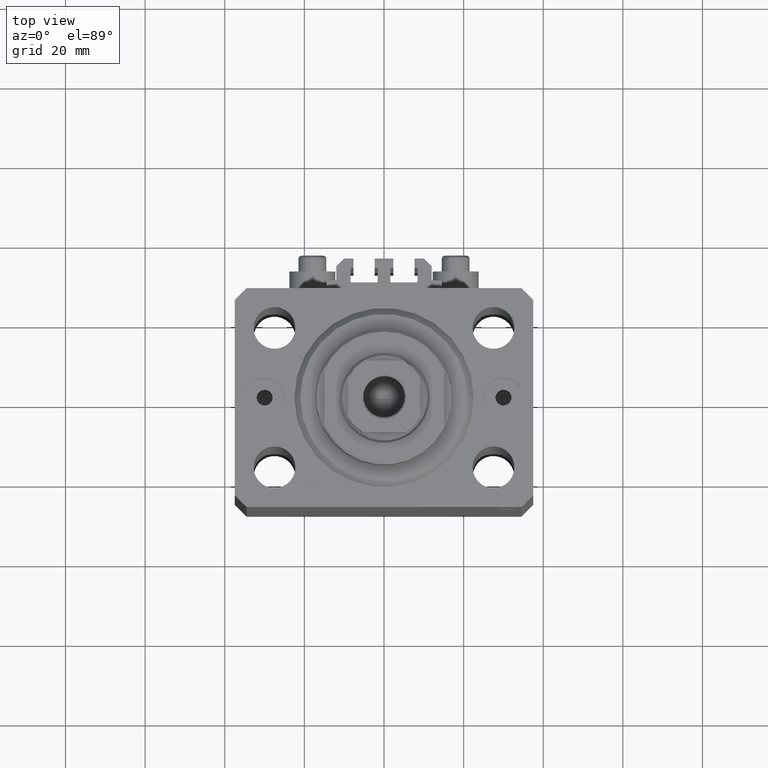
[diagram: clean part render]
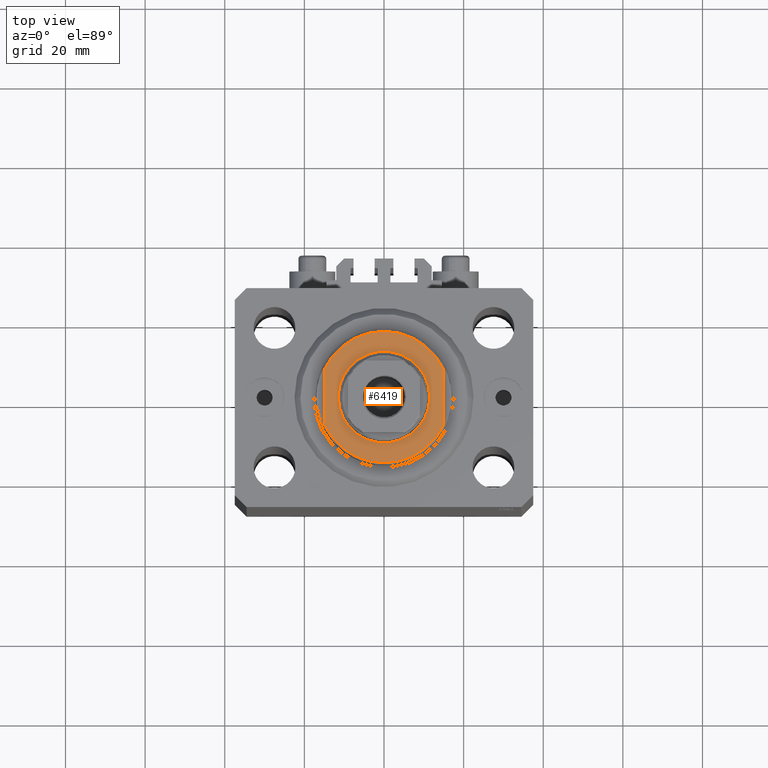
[diagram: same view with one face highlighted and labeled with its STEP entity id]
A machine part, top view. The second image highlights one B-rep face of the part: STEP entity #6419.
In plain terms, the highlighted planar face has unit normal (0, 0, 1).
Its self-contained STEP definition (entity closure, byte-faithful):
#115 = DIRECTION ( 'NONE',  ( -0.000000000000000000, -0.000000000000000000, 1.000000000000000000 ) ) ;
#713 = VERTEX_POINT ( 'NONE', #10875 ) ;
#829 = VERTEX_POINT ( 'NONE', #33327 ) ;
#1078 = CARTESIAN_POINT ( 'NONE',  ( -15.00000000000000000, -42.42640687119285303, -8.000000000000000000 ) ) ;
#2230 = PLANE ( 'NONE',  #18091 ) ;
#2938 = CARTESIAN_POINT ( 'NONE',  ( 0.000000000000000000, 0.000000000000000000, -8.000000000000000000 ) ) ;
#4175 = CARTESIAN_POINT ( 'NONE',  ( 0.000000000000000000, 0.000000000000000000, -8.000000000000000000 ) ) ;
#4891 = DIRECTION ( 'NONE',  ( -0.000000000000000000, -1.000000000000000000, -0.000000000000000000 ) ) ;
#5733 = CARTESIAN_POINT ( 'NONE',  ( 11.50000000000000355, 1.408343819019456570E-15, -8.000000000000000000 ) ) ;
#6419 = ADVANCED_FACE ( 'NONE', ( #10094, #46625 ), #2230, .T. ) ;
#7322 = CARTESIAN_POINT ( 'NONE',  ( 14.99999999999999645, -6.873863542433765517, -8.000000000000000000 ) ) ;
#7776 = CIRCLE ( 'NONE', #10788, 11.50000000000000355 ) ;
#8697 = ORIENTED_EDGE ( 'NONE', *, *, #33475, .T. ) ;
#10094 = FACE_BOUND ( 'NONE', #11980, .T. ) ;
#10331 = DIRECTION ( 'NONE',  ( 0.000000000000000000, 0.000000000000000000, -1.000000000000000000 ) ) ;
#10788 = AXIS2_PLACEMENT_3D ( 'NONE', #16738, #19614, #35124 ) ;
#10845 = DIRECTION ( 'NONE',  ( -1.000000000000000000, 0.000000000000000000, 0.000000000000000000 ) ) ;
#10875 = CARTESIAN_POINT ( 'NONE',  ( -11.50000000000000355, 0.000000000000000000, -8.000000000000000000 ) ) ;
#11101 = ORIENTED_EDGE ( 'NONE', *, *, #40061, .T. ) ;
#11980 = EDGE_LOOP ( 'NONE', ( #8697, #11101 ) ) ;
#11992 = AXIS2_PLACEMENT_3D ( 'NONE', #4175, #18723, #42558 ) ;
#12412 = LINE ( 'NONE', #44883, #19982 ) ;
#13137 = EDGE_CURVE ( 'NONE', #37943, #829, #41417, .T. ) ;
#15077 = VECTOR ( 'NONE', #4891, 1000.000000000000000 ) ;
#16689 = DIRECTION ( 'NONE',  ( 0.000000000000000000, -1.000000000000000000, -0.000000000000000000 ) ) ;
#16738 = CARTESIAN_POINT ( 'NONE',  ( 0.000000000000000000, 0.000000000000000000, -8.000000000000000000 ) ) ;
#17753 = EDGE_CURVE ( 'NONE', #37943, #22187, #20361, .T. ) ;
#18091 = AXIS2_PLACEMENT_3D ( 'NONE', #2938, #10331, #28251 ) ;
#18723 = DIRECTION ( 'NONE',  ( 0.000000000000000000, 0.000000000000000000, -1.000000000000000000 ) ) ;
#19357 = ORIENTED_EDGE ( 'NONE', *, *, #13137, .F. ) ;
#19614 = DIRECTION ( 'NONE',  ( -0.000000000000000000, -0.000000000000000000, 1.000000000000000000 ) ) ;
#19982 = VECTOR ( 'NONE', #16689, 1000.000000000000000 ) ;
#20093 = VERTEX_POINT ( 'NONE', #5733 ) ;
#20361 = CIRCLE ( 'NONE', #11992, 16.50000000000000000 ) ;
#20902 = ORIENTED_EDGE ( 'NONE', *, *, #17753, .T. ) ;
#22187 = VERTEX_POINT ( 'NONE', #31477 ) ;
#25517 = AXIS2_PLACEMENT_3D ( 'NONE', #40692, #115, #10845 ) ;
#28061 = EDGE_CURVE ( 'NONE', #42785, #829, #45085, .T. ) ;
#28251 = DIRECTION ( 'NONE',  ( -1.000000000000000000, 0.000000000000000000, -0.000000000000000000 ) ) ;
#30500 = ORIENTED_EDGE ( 'NONE', *, *, #28061, .T. ) ;
#31477 = CARTESIAN_POINT ( 'NONE',  ( 14.99999999999999645, 6.873863542433765517, -8.000000000000000000 ) ) ;
#33327 = CARTESIAN_POINT ( 'NONE',  ( -14.99999999999999645, -6.873863542433765517, -8.000000000000000000 ) ) ;
#33475 = EDGE_CURVE ( 'NONE', #713, #20093, #7776, .T. ) ;
#33675 = AXIS2_PLACEMENT_3D ( 'NONE', #36369, #36603, #43537 ) ;
#33929 = EDGE_CURVE ( 'NONE', #22187, #42785, #12412, .T. ) ;
#34877 = EDGE_LOOP ( 'NONE', ( #20902, #43341, #30500, #19357 ) ) ;
#35124 = DIRECTION ( 'NONE',  ( -1.000000000000000000, 0.000000000000000000, 0.000000000000000000 ) ) ;
#36369 = CARTESIAN_POINT ( 'NONE',  ( 0.000000000000000000, 0.000000000000000000, -8.000000000000000000 ) ) ;
#36603 = DIRECTION ( 'NONE',  ( 0.000000000000000000, 0.000000000000000000, -1.000000000000000000 ) ) ;
#37943 = VERTEX_POINT ( 'NONE', #45245 ) ;
#40061 = EDGE_CURVE ( 'NONE', #20093, #713, #45315, .T. ) ;
#40692 = CARTESIAN_POINT ( 'NONE',  ( 0.000000000000000000, 0.000000000000000000, -8.000000000000000000 ) ) ;
#41417 = LINE ( 'NONE', #1078, #15077 ) ;
#42558 = DIRECTION ( 'NONE',  ( -1.000000000000000000, 0.000000000000000000, 0.000000000000000000 ) ) ;
#42785 = VERTEX_POINT ( 'NONE', #7322 ) ;
#43341 = ORIENTED_EDGE ( 'NONE', *, *, #33929, .T. ) ;
#43537 = DIRECTION ( 'NONE',  ( -1.000000000000000000, 0.000000000000000000, 0.000000000000000000 ) ) ;
#44883 = CARTESIAN_POINT ( 'NONE',  ( 15.00000000000000000, -42.42640687119285303, -8.000000000000000000 ) ) ;
#45085 = CIRCLE ( 'NONE', #33675, 16.50000000000000000 ) ;
#45245 = CARTESIAN_POINT ( 'NONE',  ( -14.99999999999999645, 6.873863542433765517, -8.000000000000000000 ) ) ;
#45315 = CIRCLE ( 'NONE', #25517, 11.50000000000000355 ) ;
#46625 = FACE_OUTER_BOUND ( 'NONE', #34877, .T. ) ;